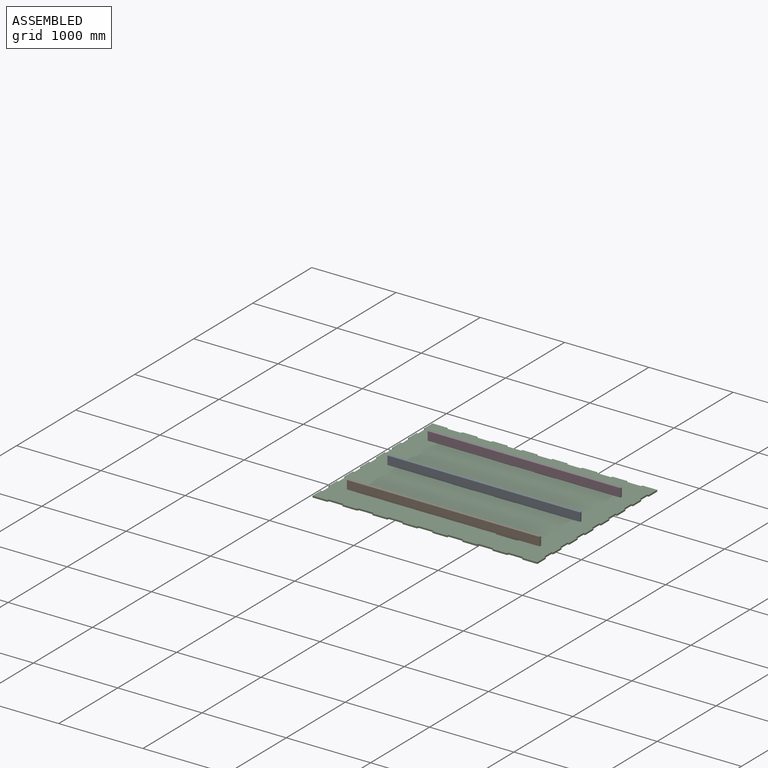
[diagram: assembled view]
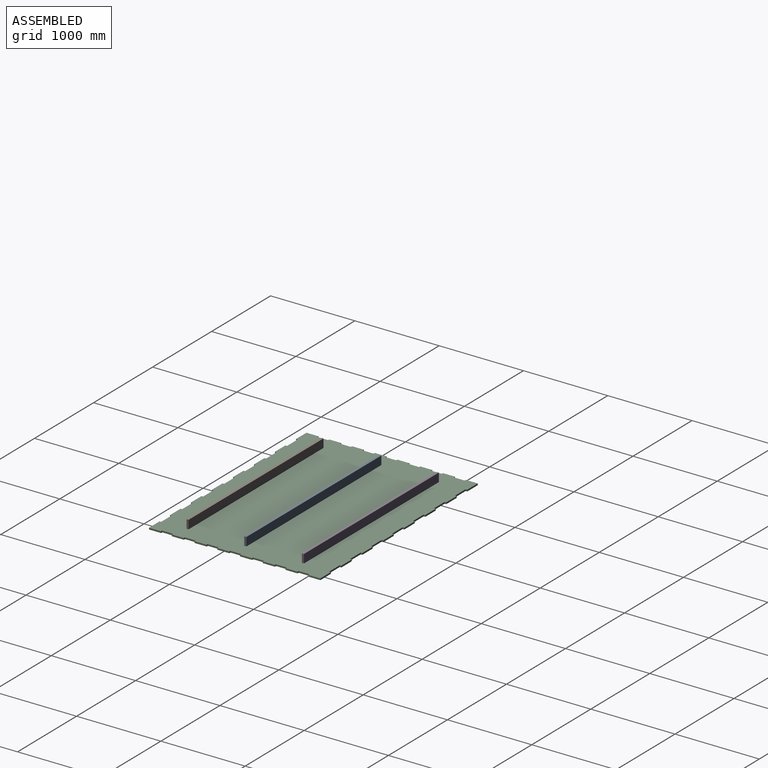
[diagram: assembled view, second angle]
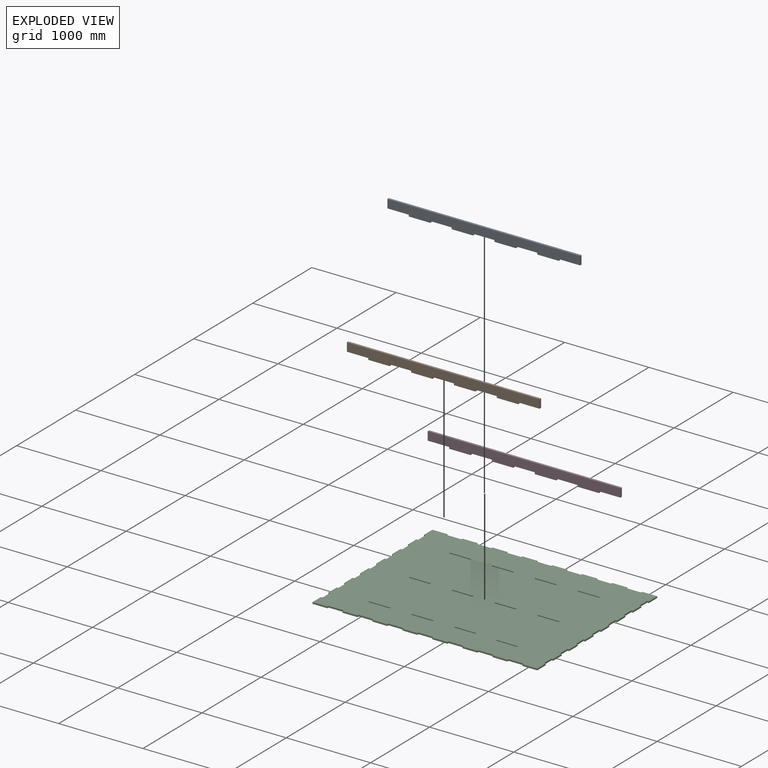
[diagram: exploded view]
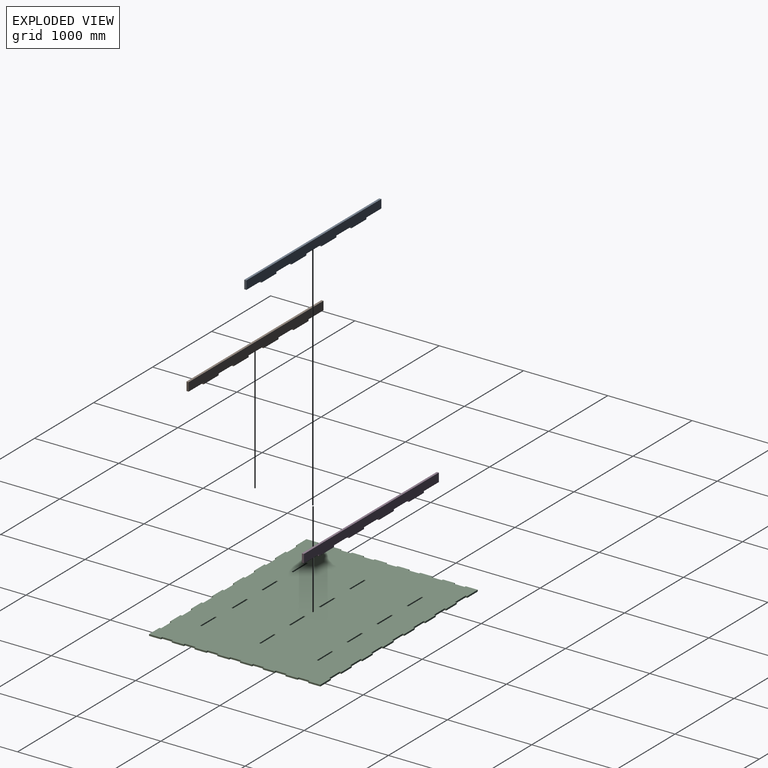
[diagram: exploded view, second angle]
ASSEMBLY  parts=4 mates=2
PART A: 22 faces, bbox 2286x25.4x120.7 mm
  f0: plane 25.4x19.05mm, normal (-1,0,0), area 483.9mm2, adj f1,f19,f20,f21
  f1: plane 254x25.4mm, normal (0,0,1), area 6451.6mm2, adj f0,f2,f20,f21
  f2: plane 25.4x19.05mm, normal (1,0,0), area 483.9mm2, adj f1,f3,f20,f21
  f3: plane 254x25.4mm, normal (0,0,1), area 6451.6mm2, adj f2,f4,f20,f21
  f4: plane 25.4x19.05mm, normal (-1,0,0), area 483.9mm2, adj f3,f5,f20,f21
  f5: plane 254x25.4mm, normal (0,0,1), area 6451.6mm2, adj f4,f6,f20,f21
  f6: plane 101.6x25.4mm, normal (-1,0,0), area 2580.6mm2, adj f5,f7,f20,f21
  f7: plane 2286x25.4mm, normal (0,0,-1), area 58064.4mm2, adj f6,f8,f20,f21
  f8: plane 101.6x25.4mm, normal (1,0,0), area 2580.6mm2, adj f7,f9,f20,f21
  f9: plane 254x25.4mm, normal (0,0,1), area 6451.6mm2, adj f8,f10,f20,f21
  f10: plane 25.4x19.05mm, normal (1,0,0), area 483.9mm2, adj f9,f11,f20,f21
  f11: plane 254x25.4mm, normal (0,0,1), area 6451.6mm2, adj f10,f12,f20,f21
  f12: plane 25.4x19.05mm, normal (-1,0,0), area 483.9mm2, adj f11,f13,f20,f21
  f13: plane 254x25.4mm, normal (0,0,1), area 6451.6mm2, adj f12,f14,f20,f21
  f14: plane 25.4x19.05mm, normal (1,0,0), area 483.9mm2, adj f13,f15,f20,f21
  f15: plane 254x25.4mm, normal (0,0,1), area 6451.6mm2, adj f14,f16,f20,f21
  f16: plane 25.4x19.05mm, normal (-1,0,0), area 483.9mm2, adj f15,f17,f20,f21
  f17: plane 254x25.4mm, normal (0,0,1), area 6451.6mm2, adj f16,f18,f20,f21
  f18: plane 25.4x19.05mm, normal (1,0,0), area 483.9mm2, adj f17,f19,f20,f21
  f19: plane 254x25.4mm, normal (0,0,1), area 6451.6mm2, adj f0,f18,f20,f21
  f20: plane 2286x120.65mm, normal (0,-1,0), area 251612.4mm2, adj f0,f1,f2,f3,f4,f5,f6,f7
  f21: plane 2286x120.65mm, normal (0,1,0), area 251612.4mm2, adj f0,f1,f2,f3,f4,f5,f6,f7
PART B: same geometry as A
PART C: 166 faces, bbox 2667x2032x19.1 mm
  f0: plane 2667x2032mm, normal (0,0,1), area 5278667mm2, adj f2,f3,f4,f5,f6,f7,f8,f9
  f1: plane 2667x2032mm, normal (0,0,-1), area 5278667mm2, adj f2,f3,f4,f5,f6,f7,f8,f9
  f2: plane 177.8x19.05mm, normal (0,-1,0), area 3387.1mm2, adj f0,f1,f112,f116
  f3: plane 177.8x19.05mm, normal (0,-1,0), area 3387.1mm2, adj f0,f1,f23,f115
  f4: plane 177.8x19.05mm, normal (0,-1,0), area 3387.1mm2, adj f0,f1,f109,f113
  f5: plane 177.8x19.05mm, normal (0,-1,0), area 3387.1mm2, adj f0,f1,f106,f110
  f6: plane 177.8x19.05mm, normal (0,-1,0), area 3387.1mm2, adj f0,f1,f103,f107
  f7: plane 177.8x19.05mm, normal (0,-1,0), area 3387.1mm2, adj f0,f1,f100,f104
  f8: plane 177.8x19.05mm, normal (0,-1,0), area 3387.1mm2, adj f0,f1,f97,f101
  f9: plane 177.8x19.05mm, normal (0,1,0), area 3387.1mm2, adj f0,f1,f92,f94
  f10: plane 177.8x19.05mm, normal (0,1,0), area 3387.1mm2, adj f0,f1,f89,f91
  f11: plane 177.8x19.05mm, normal (0,1,0), area 3387.1mm2, adj f0,f1,f86,f88
  f12: plane 177.8x19.05mm, normal (0,1,0), area 3387.1mm2, adj f0,f1,f83,f85
  f13: plane 177.8x19.05mm, normal (0,1,0), area 3387.1mm2, adj f0,f1,f80,f82
  f14: plane 177.8x19.05mm, normal (0,1,0), area 3387.1mm2, adj f0,f1,f77,f79
  f15: plane 177.8x19.05mm, normal (0,1,0), area 3387.1mm2, adj f0,f1,f32,f76
  f16: plane 142.88x19.05mm, normal (-1,0,0), area 2721.8mm2, adj f0,f1,f70,f74
  f17: plane 142.88x19.05mm, normal (-1,0,0), area 2721.8mm2, adj f0,f1,f67,f71
  f18: plane 142.88x19.05mm, normal (-1,0,0), area 2721.8mm2, adj f0,f1,f64,f68
  f19: plane 142.88x19.05mm, normal (-1,0,0), area 2721.8mm2, adj f0,f1,f61,f65
  f20: plane 142.88x19.05mm, normal (-1,0,0), area 2721.8mm2, adj f0,f1,f58,f62
  f21: plane 142.88x19.05mm, normal (-1,0,0), area 2721.8mm2, adj f0,f1,f55,f59
  f22: plane 142.88x19.05mm, normal (-1,0,0), area 2721.8mm2, adj f0,f1,f33,f56
  f23: plane 142.88x19.05mm, normal (1,0,0), area 2721.8mm2, adj f0,f1,f3,f52
  f24: plane 142.88x19.05mm, normal (1,0,0), area 2721.8mm2, adj f0,f1,f49,f53
  f25: plane 142.88x19.05mm, normal (1,0,0), area 2721.8mm2, adj f0,f1,f46,f50
  f26: plane 142.88x19.05mm, normal (1,0,0), area 2721.8mm2, adj f0,f1,f43,f47
  f27: plane 142.88x19.05mm, normal (1,0,0), area 2721.8mm2, adj f0,f1,f40,f44
  f28: plane 142.88x19.05mm, normal (1,0,0), area 2721.8mm2, adj f0,f1,f37,f41
  f29: plane 142.88x19.05mm, normal (1,0,0), area 2721.8mm2, adj f0,f1,f34,f38
  f30: plane 142.88x19.05mm, normal (-1,0,0), area 2721.8mm2, adj f0,f1,f31,f73
  f31: plane 177.8x19.05mm, normal (0,-1,0), area 3387.1mm2, adj f0,f1,f30,f98
  f32: plane 142.88x19.05mm, normal (1,0,0), area 2721.8mm2, adj f0,f1,f15,f35
  f33: plane 177.8x19.05mm, normal (0,1,0), area 3387.1mm2, adj f0,f1,f22,f95
  f34: plane 19.05x19.05mm, normal (0,1,0), area 362.9mm2, adj f0,f1,f29,f36
  f35: plane 19.05x19.05mm, normal (0,-1,0), area 362.9mm2, adj f0,f1,f32,f36
  f36: plane 127x19.05mm, normal (1,0,0), area 2419.3mm2, adj f0,f1,f34,f35
  f37: plane 19.05x19.05mm, normal (0,1,0), area 362.9mm2, adj f0,f1,f28,f39
  f38: plane 19.05x19.05mm, normal (0,-1,0), area 362.9mm2, adj f0,f1,f29,f39
  f39: plane 127x19.05mm, normal (1,0,0), area 2419.3mm2, adj f0,f1,f37,f38
  f40: plane 19.05x19.05mm, normal (0,1,0), area 362.9mm2, adj f0,f1,f27,f42
  f41: plane 19.05x19.05mm, normal (0,-1,0), area 362.9mm2, adj f0,f1,f28,f42
  f42: plane 127x19.05mm, normal (1,0,0), area 2419.3mm2, adj f0,f1,f40,f41
  f43: plane 19.05x19.05mm, normal (0,1,0), area 362.9mm2, adj f0,f1,f26,f45
  f44: plane 19.05x19.05mm, normal (0,-1,0), area 362.9mm2, adj f0,f1,f27,f45
  f45: plane 127x19.05mm, normal (1,0,0), area 2419.3mm2, adj f0,f1,f43,f44
  f46: plane 19.05x19.05mm, normal (0,1,0), area 362.9mm2, adj f0,f1,f25,f48
  f47: plane 19.05x19.05mm, normal (0,-1,0), area 362.9mm2, adj f0,f1,f26,f48
  f48: plane 127x19.05mm, normal (1,0,0), area 2419.3mm2, adj f0,f1,f46,f47
  f49: plane 19.05x19.05mm, normal (0,1,0), area 362.9mm2, adj f0,f1,f24,f51
  f50: plane 19.05x19.05mm, normal (0,-1,0), area 362.9mm2, adj f0,f1,f25,f51
  f51: plane 127x19.05mm, normal (1,0,0), area 2419.3mm2, adj f0,f1,f49,f50
  f52: plane 19.05x19.05mm, normal (0,1,0), area 362.9mm2, adj f0,f1,f23,f54
  f53: plane 19.05x19.05mm, normal (0,-1,0), area 362.9mm2, adj f0,f1,f24,f54
  f54: plane 127x19.05mm, normal (1,0,0), area 2419.3mm2, adj f0,f1,f52,f53
  f55: plane 19.05x19.05mm, normal (0,1,0), area 362.9mm2, adj f0,f1,f21,f57
  f56: plane 19.05x19.05mm, normal (0,-1,0), area 362.9mm2, adj f0,f1,f22,f57
  f57: plane 127x19.05mm, normal (-1,0,0), area 2419.3mm2, adj f0,f1,f55,f56
  f58: plane 19.05x19.05mm, normal (0,1,0), area 362.9mm2, adj f0,f1,f20,f60
  f59: plane 19.05x19.05mm, normal (0,-1,0), area 362.9mm2, adj f0,f1,f21,f60
  f60: plane 127x19.05mm, normal (-1,0,0), area 2419.3mm2, adj f0,f1,f58,f59
  f61: plane 19.05x19.05mm, normal (0,1,0), area 362.9mm2, adj f0,f1,f19,f63
  f62: plane 19.05x19.05mm, normal (0,-1,0), area 362.9mm2, adj f0,f1,f20,f63
  f63: plane 127x19.05mm, normal (-1,0,0), area 2419.3mm2, adj f0,f1,f61,f62
  f64: plane 19.05x19.05mm, normal (0,1,0), area 362.9mm2, adj f0,f1,f18,f66
  f65: plane 19.05x19.05mm, normal (0,-1,0), area 362.9mm2, adj f0,f1,f19,f66
  f66: plane 127x19.05mm, normal (-1,0,0), area 2419.3mm2, adj f0,f1,f64,f65
  f67: plane 19.05x19.05mm, normal (0,1,0), area 362.9mm2, adj f0,f1,f17,f69
  f68: plane 19.05x19.05mm, normal (0,-1,0), area 362.9mm2, adj f0,f1,f18,f69
  f69: plane 127x19.05mm, normal (-1,0,0), area 2419.3mm2, adj f0,f1,f67,f68
  f70: plane 19.05x19.05mm, normal (0,1,0), area 362.9mm2, adj f0,f1,f16,f72
  f71: plane 19.05x19.05mm, normal (0,-1,0), area 362.9mm2, adj f0,f1,f17,f72
  f72: plane 127x19.05mm, normal (-1,0,0), area 2419.3mm2, adj f0,f1,f70,f71
  f73: plane 19.05x19.05mm, normal (0,1,0), area 362.9mm2, adj f0,f1,f30,f75
  f74: plane 19.05x19.05mm, normal (0,-1,0), area 362.9mm2, adj f0,f1,f16,f75
  f75: plane 127x19.05mm, normal (-1,0,0), area 2419.3mm2, adj f0,f1,f73,f74
  f76: plane 19.05x19.05mm, normal (-1,0,0), area 362.9mm2, adj f0,f1,f15,f78
  f77: plane 19.05x19.05mm, normal (1,0,0), area 362.9mm2, adj f0,f1,f14,f78
  f78: plane 177.8x19.05mm, normal (0,1,0), area 3387.1mm2, adj f0,f1,f76,f77
  f79: plane 19.05x19.05mm, normal (-1,0,0), area 362.9mm2, adj f0,f1,f14,f81
  f80: plane 19.05x19.05mm, normal (1,0,0), area 362.9mm2, adj f0,f1,f13,f81
  f81: plane 177.8x19.05mm, normal (0,1,0), area 3387.1mm2, adj f0,f1,f79,f80
  f82: plane 19.05x19.05mm, normal (-1,0,0), area 362.9mm2, adj f0,f1,f13,f84
  f83: plane 19.05x19.05mm, normal (1,0,0), area 362.9mm2, adj f0,f1,f12,f84
  f84: plane 177.8x19.05mm, normal (0,1,0), area 3387.1mm2, adj f0,f1,f82,f83
  f85: plane 19.05x19.05mm, normal (-1,0,0), area 362.9mm2, adj f0,f1,f12,f87
  f86: plane 19.05x19.05mm, normal (1,0,0), area 362.9mm2, adj f0,f1,f11,f87
  f87: plane 177.8x19.05mm, normal (0,1,0), area 3387.1mm2, adj f0,f1,f85,f86
  f88: plane 19.05x19.05mm, normal (-1,0,0), area 362.9mm2, adj f0,f1,f11,f90
  f89: plane 19.05x19.05mm, normal (1,0,0), area 362.9mm2, adj f0,f1,f10,f90
  f90: plane 177.8x19.05mm, normal (0,1,0), area 3387.1mm2, adj f0,f1,f88,f89
  f91: plane 19.05x19.05mm, normal (-1,0,0), area 362.9mm2, adj f0,f1,f10,f93
  f92: plane 19.05x19.05mm, normal (1,0,0), area 362.9mm2, adj f0,f1,f9,f93
  f93: plane 177.8x19.05mm, normal (0,1,0), area 3387.1mm2, adj f0,f1,f91,f92
  f94: plane 19.05x19.05mm, normal (-1,0,0), area 362.9mm2, adj f0,f1,f9,f96
  f95: plane 19.05x19.05mm, normal (1,0,0), area 362.9mm2, adj f0,f1,f33,f96
  f96: plane 177.8x19.05mm, normal (0,1,0), area 3387.1mm2, adj f0,f1,f94,f95
  f97: plane 19.05x19.05mm, normal (-1,0,0), area 362.9mm2, adj f0,f1,f8,f99
  f98: plane 19.05x19.05mm, normal (1,0,0), area 362.9mm2, adj f0,f1,f31,f99
  f99: plane 177.8x19.05mm, normal (0,-1,0), area 3387.1mm2, adj f0,f1,f97,f98
  f100: plane 19.05x19.05mm, normal (-1,0,0), area 362.9mm2, adj f0,f1,f7,f102
  f101: plane 19.05x19.05mm, normal (1,0,0), area 362.9mm2, adj f0,f1,f8,f102
  f102: plane 177.8x19.05mm, normal (0,-1,0), area 3387.1mm2, adj f0,f1,f100,f101
  f103: plane 19.05x19.05mm, normal (-1,0,0), area 362.9mm2, adj f0,f1,f6,f105
  f104: plane 19.05x19.05mm, normal (1,0,0), area 362.9mm2, adj f0,f1,f7,f105
  f105: plane 177.8x19.05mm, normal (0,-1,0), area 3387.1mm2, adj f0,f1,f103,f104
  f106: plane 19.05x19.05mm, normal (-1,0,0), area 362.9mm2, adj f0,f1,f5,f108
  f107: plane 19.05x19.05mm, normal (1,0,0), area 362.9mm2, adj f0,f1,f6,f108
  f108: plane 177.8x19.05mm, normal (0,-1,0), area 3387.1mm2, adj f0,f1,f106,f107
  f109: plane 19.05x19.05mm, normal (-1,0,0), area 362.9mm2, adj f0,f1,f4,f111
  f110: plane 19.05x19.05mm, normal (1,0,0), area 362.9mm2, adj f0,f1,f5,f111
  f111: plane 177.8x19.05mm, normal (0,-1,0), area 3387.1mm2, adj f0,f1,f109,f110
  f112: plane 19.05x19.05mm, normal (-1,0,0), area 362.9mm2, adj f0,f1,f2,f114
  f113: plane 19.05x19.05mm, normal (1,0,0), area 362.9mm2, adj f0,f1,f4,f114
  f114: plane 177.8x19.05mm, normal (0,-1,0), area 3387.1mm2, adj f0,f1,f112,f113
  f115: plane 19.05x19.05mm, normal (-1,0,0), area 362.9mm2, adj f0,f1,f3,f117
  f116: plane 19.05x19.05mm, normal (1,0,0), area 362.9mm2, adj f0,f1,f2,f117
  f117: plane 177.8x19.05mm, normal (0,-1,0), area 3387.1mm2, adj f0,f1,f115,f116
  f118: plane 253.98x19.05mm, normal (-0.01,1,0), area 4838.5mm2, adj f0,f1,f119,f121
  f119: plane 19.05x19.05mm, normal (-1,-0.01,0), area 362.9mm2, adj f0,f1,f118,f120
  f120: plane 253.85x19.05mm, normal (0.01,-1,0), area 4836mm2, adj f0,f1,f119,f121
  f121: plane 19.05x19.05mm, normal (1,0,0), area 362.9mm2, adj f0,f1,f118,f120
  f122: plane 254x19.05mm, normal (0.01,1,0), area 4838.8mm2, adj f0,f1,f123,f125
  f123: plane 20.8x19.05mm, normal (-1,0.01,0), area 396.2mm2, adj f0,f1,f122,f124
  f124: plane 254.01x19.05mm, normal (0,-1,0), area 4838.9mm2, adj f0,f1,f123,f125
  f125: plane 19.05x19.05mm, normal (1,-0.01,0), area 362.9mm2, adj f0,f1,f122,f124
  f126: plane 20.8x19.05mm, normal (1,0.01,0), area 396.2mm2, adj f0,f1,f127,f129
  f127: plane 254x19.05mm, normal (-0.01,1,0), area 4838.8mm2, adj f0,f1,f126,f128
  f128: plane 19.05x19.05mm, normal (-1,-0.01,0), area 362.9mm2, adj f0,f1,f127,f129
  f129: plane 254.01x19.05mm, normal (0,-1,0), area 4838.9mm2, adj f0,f1,f126,f128
  f130: plane 253.98x19.05mm, normal (-0.01,1,0), area 4838.5mm2, adj f0,f1,f131,f133
  f131: plane 19.05x19.05mm, normal (-1,-0.01,0), area 362.9mm2, adj f0,f1,f130,f132
  f132: plane 253.85x19.05mm, normal (0.01,-1,0), area 4836mm2, adj f0,f1,f131,f133
  f133: plane 19.05x19.05mm, normal (1,0,0), area 362.9mm2, adj f0,f1,f130,f132
  f134: plane 19.05x19.05mm, normal (1,0.01,0), area 362.9mm2, adj f0,f1,f135,f137
  f135: plane 253.85x19.05mm, normal (-0.01,1,0), area 4836mm2, adj f0,f1,f134,f136
  f136: plane 19.05x19.05mm, normal (-1,0,0), area 362.9mm2, adj f0,f1,f135,f137
  f137: plane 253.98x19.05mm, normal (0.01,-1,0), area 4838.5mm2, adj f0,f1,f134,f136
  f138: plane 254x19.05mm, normal (0.01,1,0), area 4838.8mm2, adj f0,f1,f139,f141
  f139: plane 20.8x19.05mm, normal (-1,0.01,0), area 396.2mm2, adj f0,f1,f138,f140
  f140: plane 254.01x19.05mm, normal (0,-1,0), area 4838.9mm2, adj f0,f1,f139,f141
  f141: plane 19.05x19.05mm, normal (1,-0.01,0), area 362.9mm2, adj f0,f1,f138,f140
  f142: plane 20.8x19.05mm, normal (1,0.01,0), area 396.2mm2, adj f0,f1,f143,f145
  f143: plane 254x19.05mm, normal (-0.01,1,0), area 4838.8mm2, adj f0,f1,f142,f144
  f144: plane 19.05x19.05mm, normal (-1,-0.01,0), area 362.9mm2, adj f0,f1,f143,f145
  f145: plane 254.01x19.05mm, normal (0,-1,0), area 4838.9mm2, adj f0,f1,f142,f144
  f146: plane 19.05x19.05mm, normal (1,-0.01,0), area 362.9mm2, adj f0,f1,f147,f149
  f147: plane 253.98x19.05mm, normal (0.01,1,0), area 4838.5mm2, adj f0,f1,f146,f148
  f148: plane 19.05x19.05mm, normal (-1,0,0), area 362.9mm2, adj f0,f1,f147,f149
  f149: plane 253.85x19.05mm, normal (-0.01,-1,0), area 4836mm2, adj f0,f1,f146,f148
  f150: plane 19.05x19.05mm, normal (1,-0.01,0), area 362.9mm2, adj f0,f1,f151,f153
  f151: plane 253.98x19.05mm, normal (0.01,1,0), area 4838.5mm2, adj f0,f1,f150,f152
  f152: plane 19.05x19.05mm, normal (-1,0,0), area 362.9mm2, adj f0,f1,f151,f153
  f153: plane 253.85x19.05mm, normal (-0.01,-1,0), area 4836mm2, adj f0,f1,f150,f152
  f154: plane 254.01x19.05mm, normal (0,1,0), area 4838.9mm2, adj f0,f1,f155,f157
  f155: plane 19.05x19.05mm, normal (-1,0.01,0), area 362.9mm2, adj f0,f1,f154,f156
  f156: plane 254x19.05mm, normal (-0.01,-1,0), area 4838.8mm2, adj f0,f1,f155,f157
  f157: plane 20.8x19.05mm, normal (1,-0.01,0), area 396.2mm2, adj f0,f1,f154,f156
  f158: plane 19.05x19.05mm, normal (1,0.01,0), area 362.9mm2, adj f0,f1,f159,f161
  f159: plane 254.01x19.05mm, normal (0,1,0), area 4838.9mm2, adj f0,f1,f158,f160
  f160: plane 20.8x19.05mm, normal (-1,-0.01,0), area 396.2mm2, adj f0,f1,f159,f161
  f161: plane 254x19.05mm, normal (0.01,-1,0), area 4838.8mm2, adj f0,f1,f158,f160
  f162: plane 19.05x19.05mm, normal (-1,0.01,0), area 362.9mm2, adj f0,f1,f163,f165
  f163: plane 253.98x19.05mm, normal (-0.01,-1,0), area 4838.5mm2, adj f0,f1,f162,f164
  f164: plane 19.05x19.05mm, normal (1,0,0), area 362.9mm2, adj f0,f1,f163,f165
  f165: plane 253.85x19.05mm, normal (0.01,1,0), area 4836mm2, adj f0,f1,f162,f164
PART D: same geometry as A
PLACE A rot(axis=(1,0,0),180deg) t=(203.04,577.05,397.89)mm
PLACE B rot(axis=(1,0,0),180deg) t=(203.18,-109.01,397.89)mm
PLACE C t=(-495.46,-419.76,159.08)mm
PLACE D rot(axis=(1,0,0),180deg) t=(203.04,1259.67,397.89)mm
MATE fastened B.f3 <-> C.f1  axis (0,0,-1) through (-50.82,-109.01,159.08)mm
MATE fastened A.f3 <-> C.f1  axis (0,0,-1) through (-50.96,577.05,159.08)mm
